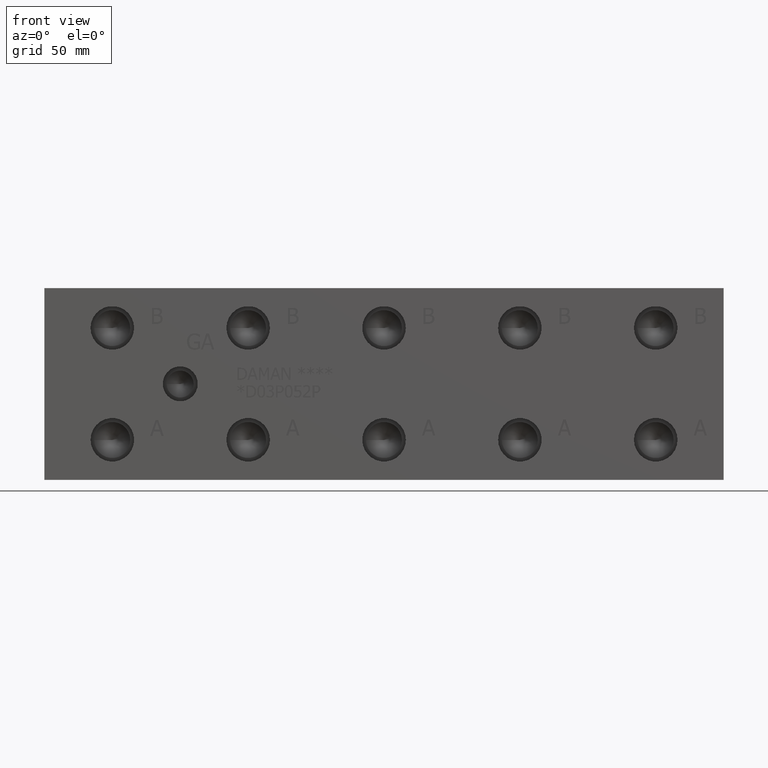
[diagram: clean part render]
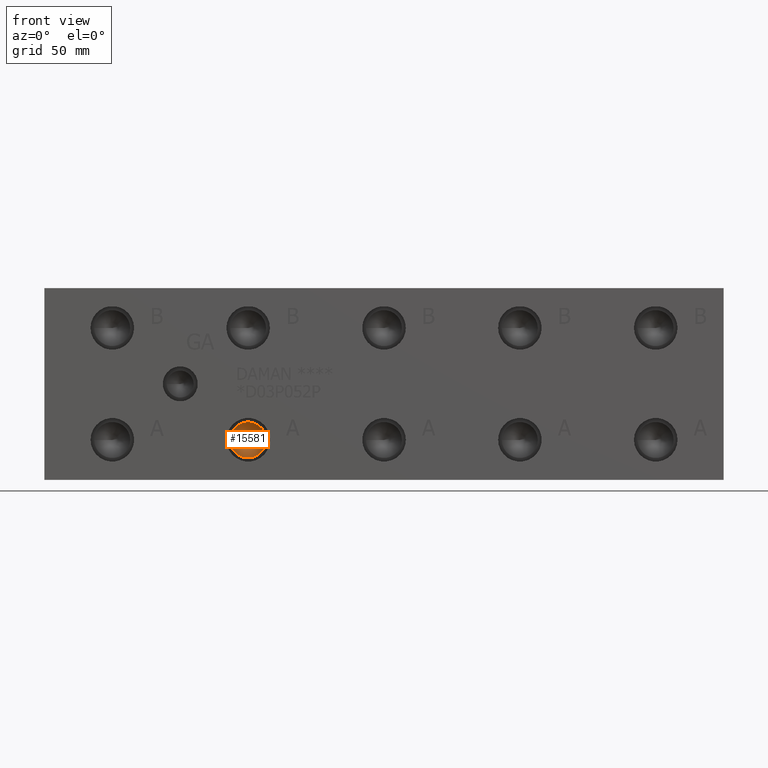
[diagram: same view with one face highlighted and labeled with its STEP entity id]
A machine part, front view. The second image highlights one B-rep face of the part: STEP entity #15581.
In plain terms, the highlighted conical surface has half-angle 60 deg.
Its self-contained STEP definition (entity closure, byte-faithful):
#132=CONICAL_SURFACE('',#16319,3.57505,1.0471975511966);
#294=CIRCLE('',#16320,7.1501);
#295=CIRCLE('',#16321,7.1501);
#1819=FACE_OUTER_BOUND('',#2723,.T.);
#2723=EDGE_LOOP('',(#13346,#13347,#13348,#13349));
#4215=LINE('',#26341,#5610);
#5610=VECTOR('',#19152,3.57505);
#7344=VERTEX_POINT('',#26337);
#7345=VERTEX_POINT('',#26338);
#7346=VERTEX_POINT('',#26340);
#9435=EDGE_CURVE('',#7344,#7345,#294,.T.);
#9436=EDGE_CURVE('',#7345,#7346,#4215,.T.);
#9437=EDGE_CURVE('',#7345,#7344,#295,.T.);
#13346=ORIENTED_EDGE('',*,*,#9435,.T.);
#13347=ORIENTED_EDGE('',*,*,#9436,.T.);
#13348=ORIENTED_EDGE('',*,*,#9436,.F.);
#13349=ORIENTED_EDGE('',*,*,#9437,.T.);
#15581=ADVANCED_FACE('',(#1819),#132,.F.);
#16319=AXIS2_PLACEMENT_3D('',#26336,#19148,#19149);
#16320=AXIS2_PLACEMENT_3D('',#26339,#19150,#19151);
#16321=AXIS2_PLACEMENT_3D('',#26342,#19153,#19154);
#19148=DIRECTION('center_axis',(0.,-1.,0.));
#19149=DIRECTION('ref_axis',(1.,0.,0.));
#19150=DIRECTION('center_axis',(0.,-1.,0.));
#19151=DIRECTION('ref_axis',(1.,0.,0.));
#19152=DIRECTION('',(0.866025403784439,0.5,1.06057523872491E-16));
#19153=DIRECTION('center_axis',(0.,-1.,0.));
#19154=DIRECTION('ref_axis',(1.,0.,0.));
#26336=CARTESIAN_POINT('Origin',(80.95996,14.2116660798664,15.875));
#26337=CARTESIAN_POINT('',(88.11006,12.14761,15.875));
#26338=CARTESIAN_POINT('',(73.80986,12.14761,15.875));
#26339=CARTESIAN_POINT('Origin',(80.95996,12.14761,15.875));
#26340=CARTESIAN_POINT('',(80.95996,16.2757221597327,15.875));
#26341=CARTESIAN_POINT('',(77.38491,14.2116660798664,15.875));
#26342=CARTESIAN_POINT('Origin',(80.95996,12.14761,15.875));